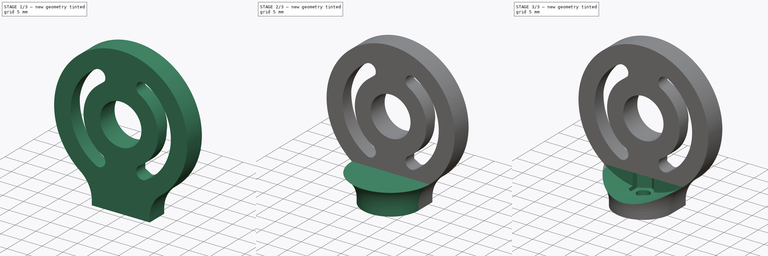
[diagram: build sequence overview — one tinted view per stage of 3, left to right]
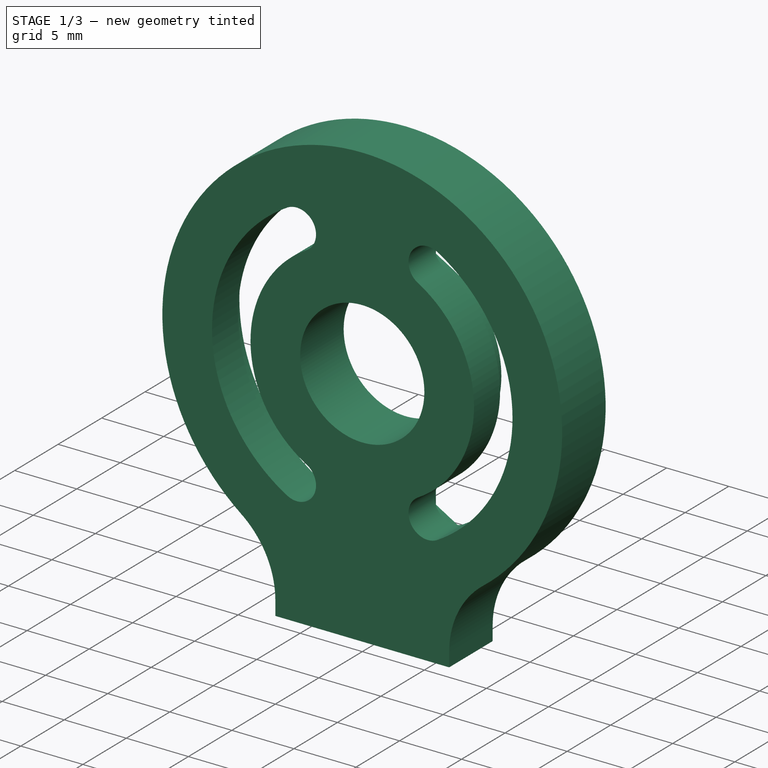
[diagram: stage 1 of 3 — iso view after this stage's code; geometry added in this stage tinted green]
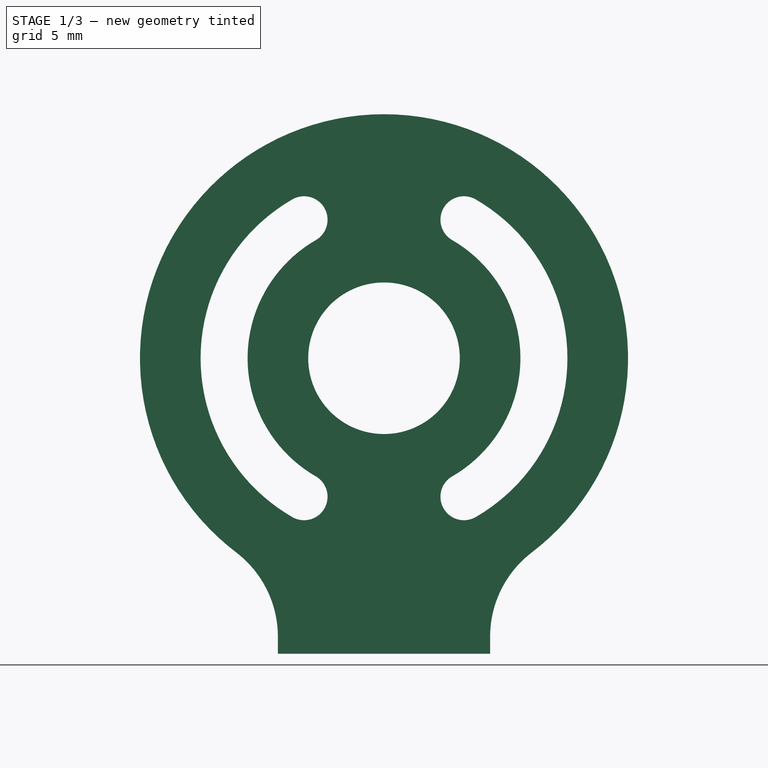
[diagram: stage 1 of 3 — front view after this stage's code; geometry added in this stage tinted green]
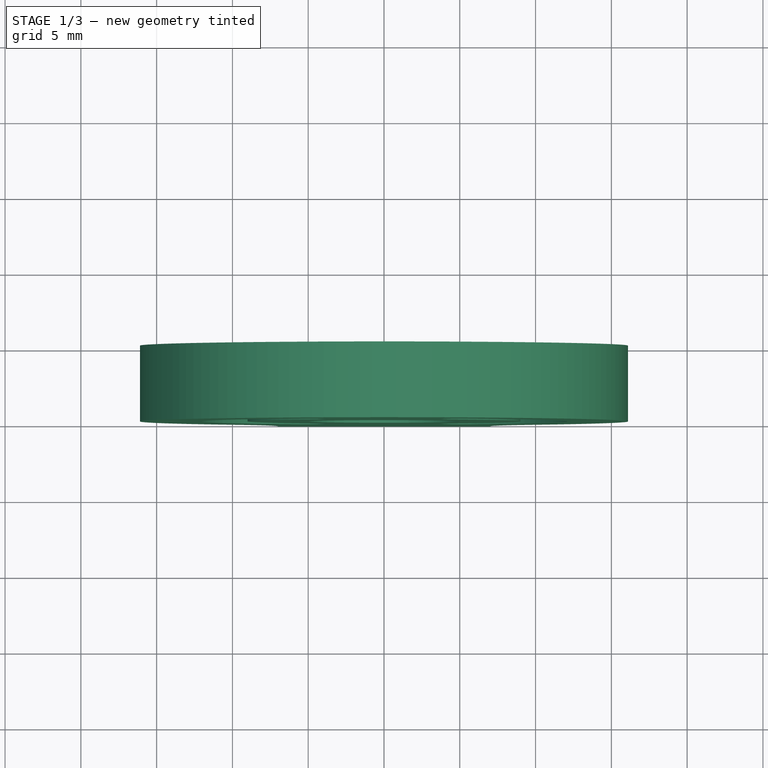
[diagram: stage 1 of 3 — top view after this stage's code; geometry added in this stage tinted green]
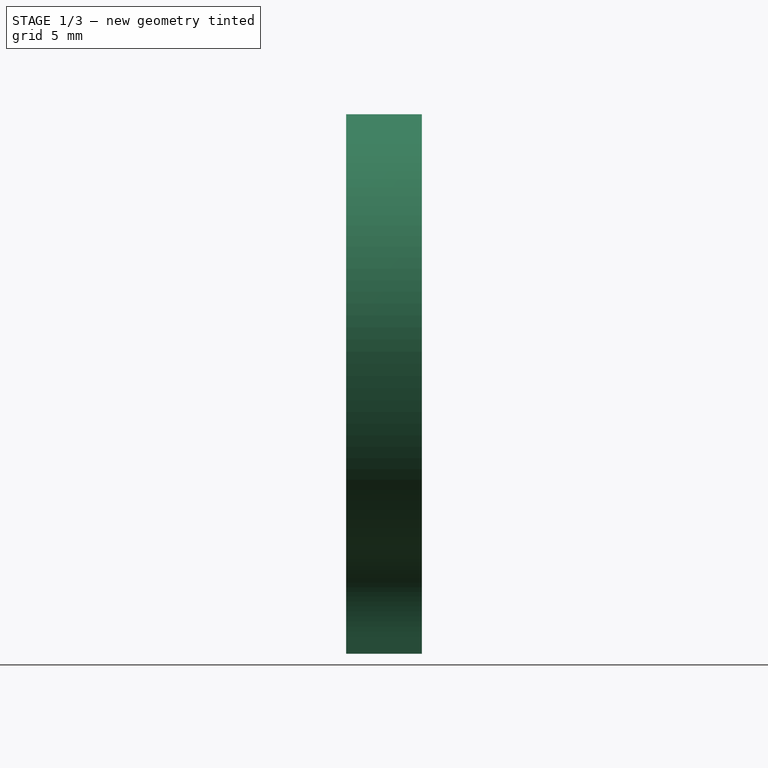
[diagram: stage 1 of 3 — right view after this stage's code; geometry added in this stage tinted green]
FCSTD DOCUMENT  (FreeCAD 0.16RUnknown)
Label: joint-i-top.005
License: All rights reserved
LicenseURL: http://en.wikipedia.org/wiki/All_rights_reserved
objects: Sketcher::SketchObject×7, PartDesign::Pocket×4, Part::Extrusion×1, Part::Fillet×1, Part::Revolution×1, Part::MultiFuse×1
note: 19 computed .brp shape members not serialized (recipe doc carries the construction recipe); baked Part::Feature solids carry a one-line shape summary decoded from their .brp

FEATURE [Sketcher::SketchObject] Sketch
  sketch-geometry (4):
    g0: Circle [constr] CenterX=0 CenterY=0 CenterZ=0 NormalX=0 NormalY=0 NormalZ=1 Radius=5
    g1: LineSegment [constr] StartX=5 StartY=0 StartZ=0 EndX=7 EndY=0 EndZ=0
    g2: ArcOfCircle CenterX=0 CenterY=0 CenterZ=0 NormalX=0 NormalY=0 NormalZ=1 Radius=7 StartAngle=2.34599 EndAngle=7.07879
    g3: LineSegment StartX=-4.89898 StartY=5 StartZ=0 EndX=4.89898 EndY=5 EndZ=0
  constraints (9):
    c: Radius(g0) = 5
    c: Horizontal(g1)
    c: PointOnObject(g1,g0)
    c: PointOnObject(g1,g-1)
    c: DistanceX(g1,g1) = 2
    c: PointOnObject(g1,g2)
    c: Horizontal(g3)
    c: Coincident(g2,g3)
    c: Coincident(g2,g3)
FEATURE [Sketcher::SketchObject] Sketch001
  Placement = pos=(0,0,0) rot=(1,0,0;1.5708rad)
  sketch-geometry (28):
    g0: Circle CenterX=0 CenterY=19.4986 CenterZ=0 NormalX=0 NormalY=0 NormalZ=1 Radius=5
    g1: ArcOfCircle CenterX=0 CenterY=19.4986 CenterZ=0 NormalX=0 NormalY=0 NormalZ=1 Radius=12.1 StartAngle=2.0944 EndAngle=4.18879
    g2: ArcOfCircle CenterX=0 CenterY=19.4986 CenterZ=0 NormalX=0 NormalY=0 NormalZ=1 Radius=9 StartAngle=2.0944 EndAngle=4.18879
    g3: ArcOfCircle CenterX=0 CenterY=19.4986 CenterZ=0 NormalX=0 NormalY=0 NormalZ=1 Radius=9 StartAngle=5.23599 EndAngle=7.33038
    g4: ArcOfCircle CenterX=0 CenterY=19.4986 CenterZ=0 NormalX=0 NormalY=0 NormalZ=1 Radius=12.1 StartAngle=5.23599 EndAngle=7.33038
    g5: ArcOfCircle [constr] CenterX=0 CenterY=19.4986 CenterZ=0 NormalX=0 NormalY=0 NormalZ=1 Radius=9 StartAngle=4.18879 EndAngle=5.23599
    g6: ArcOfCircle [constr] CenterX=0 CenterY=19.4986 CenterZ=0 NormalX=0 NormalY=0 NormalZ=1 Radius=12.1 StartAngle=4.18879 EndAngle=5.23599
    g7: ArcOfCircle [constr] CenterX=0 CenterY=19.4986 CenterZ=0 NormalX=0 NormalY=0 NormalZ=1 Radius=9 StartAngle=1.0472 EndAngle=2.0944
    g8: ArcOfCircle [constr] CenterX=0 CenterY=19.4986 CenterZ=0 NormalX=0 NormalY=0 NormalZ=1 Radius=12.1 StartAngle=1.0472 EndAngle=2.0944
    g9: LineSegment [constr] StartX=6.05 StartY=9.01971 StartZ=0 EndX=4.5 EndY=11.7044 EndZ=0
    g10: LineSegment [constr] StartX=4.5 StartY=11.7044 StartZ=0 EndX=0 EndY=19.4986 EndZ=0
    g11: LineSegment [constr] StartX=-4.5 StartY=27.2928 StartZ=0 EndX=-6.05 EndY=29.9775 EndZ=0
    g12: LineSegment [constr] StartX=-6.05 StartY=9.01971 StartZ=0 EndX=-4.5 EndY=11.7044 EndZ=0
    g13: LineSegment [constr] StartX=-4.5 StartY=11.7044 StartZ=0 EndX=0 EndY=19.4986 EndZ=0
    g14: LineSegment [constr] StartX=0 StartY=19.4986 StartZ=0 EndX=4.5 EndY=27.2928 EndZ=0
    g15: LineSegment [constr] StartX=4.5 StartY=27.2928 StartZ=0 EndX=6.05 EndY=29.9775 EndZ=0
    g16: LineSegment [constr] StartX=0 StartY=19.4986 StartZ=0 EndX=-2.5 EndY=23.8287 EndZ=0
    g17: LineSegment [constr] StartX=-2.5 StartY=23.8287 StartZ=0 EndX=-4.5 EndY=27.2928 EndZ=0
    g18: LineSegment [constr] StartX=-6.05 StartY=29.9775 StartZ=0 EndX=-8.05 EndY=33.4416 EndZ=0
    g19: ArcOfCircle CenterX=-5.275 CenterY=10.3621 CenterZ=0 NormalX=0 NormalY=0 NormalZ=1 Radius=1.55 StartAngle=4.18879 EndAngle=7.33038
    g20: ArcOfCircle CenterX=5.275 CenterY=10.3621 CenterZ=0 NormalX=0 NormalY=0 NormalZ=1 Radius=1.55 StartAngle=2.0944 EndAngle=5.23599
    g21: ArcOfCircle CenterX=5.275 CenterY=28.6352 CenterZ=0 NormalX=0 NormalY=0 NormalZ=1 Radius=1.55 StartAngle=1.0472 EndAngle=4.18879
    g22: ArcOfCircle CenterX=-5.275 CenterY=28.6352 CenterZ=0 NormalX=0 NormalY=0 NormalZ=1 Radius=1.55 StartAngle=5.23599 EndAngle=8.37758
    g23: LineSegment StartX=-7 StartY=0 StartZ=0 EndX=7 EndY=0 EndZ=0
    g24: ArcOfCircle CenterX=0 CenterY=19.4986 CenterZ=0 NormalX=0 NormalY=0 NormalZ=1 Radius=16.1 StartAngle=5.16219 EndAngle=10.5458
    g25: LineSegment StartX=-7 StartY=0 StartZ=0 EndX=-7 EndY=5 EndZ=0
    g26: LineSegment StartX=7 StartY=0 StartZ=0 EndX=7 EndY=5 EndZ=0
    g27: LineSegment [constr] StartX=-4.5 StartY=27.2928 StartZ=0 EndX=4.5 EndY=27.2928 EndZ=0
  constraints (77):
    c: PointOnObject(g5,g-2)
    c: Coincident(g0,g1)
    c: Coincident(g0,g2)
    c: Coincident(g0,g3)
    c: Coincident(g0,g4)
    c: Coincident(g0,g5)
    c: Coincident(g0,g6)
    c: Coincident(g0,g7)
    c: Coincident(g0,g8)
    c: Coincident(g2,g5)
    c: Coincident(g1,g6)
    c: Coincident(g3,g5)
    c: Coincident(g4,g6)
    c: Coincident(g2,g7)
    c: Coincident(g3,g7)
    c: Coincident(g1,g8)
    c: Coincident(g4,g8)
    c: Radius(g0) = 5
    c: Coincident(g9,g10)
    c: Coincident(g12,g13)
    c: Coincident(g13,g14)
    c: Coincident(g14,g15)
    c: Coincident(g0,g10)
    c: Coincident(g0,g13)
    c: Coincident(g1,g11)
    c: Coincident(g2,g12)
    c: Coincident(g3,g9)
    c: Coincident(g4,g9)
    c: Coincident(g3,g14)
    c: Coincident(g4,g15)
    c: Parallel(g12,g13)
    c: Parallel(g13,g14)
    c: Parallel(g14,g15)
    c: Distance(g11) = 3.1
    c: Angle(g13,g10) = 1.0472
    c: Coincident(g16,g17)
    c: Coincident(g2,g11)
    c: Coincident(g2,g17)
    c: Coincident(g0,g16)
    c: PointOnObject(g16,g0)
    c: Distance(g17) = 4
    c: Coincident(g1,g18)
    c: Parallel(g18,g11)
    c: Parallel(g11,g17)
    c: Parallel(g17,g16)
    c: Parallel(g16,g10)
    c: Parallel(g10,g9)
    c: Equal(g18,g17)
    c: Coincident(g2,g22)
    c: Coincident(g1,g22)
    c: PointOnObject(g22,g11)
    c: Coincident(g1,g19)
    c: Coincident(g2,g19)
    c: PointOnObject(g19,g12)
    c: Coincident(g4,g20)
    c: Coincident(g3,g20)
    c: PointOnObject(g20,g9)
    c: Coincident(g3,g21)
    c: Coincident(g4,g21)
    c: PointOnObject(g21,g15)
    c: Horizontal(g23)
    c: Coincident(g0,g24)
    c: PointOnObject(g18,g24)
    c: PointOnObject(g-1,g23)
    c: Vertical(g25)
    c: Vertical(g26)
    c: Equal(g26,g25)
    c: Coincident(g23,g26)
    c: Coincident(g23,g25)
    c: DistanceX(g23,g23) = 14
    c: Coincident(g24,g26)
    c: Coincident(g24,g25)
    c: DistanceY(g26,g26) = 5
    c: Coincident(g12,g1)
    c: Horizontal(g27)
    c: Coincident(g2,g27)
    c: Coincident(g3,g27)
FEATURE [Part::Extrusion] Extrude001
  Base = -> Sketch001
  Dir = (0,5,0)
  Solid = true
FEATURE [Part::Fillet] Fillet
  Base = -> Extrude001
  Edges = 2 edges r=7: [Edge5,Edge8]
FEATURE [Sketcher::SketchObject] Sketch002
  ExternalGeometry = -> [Fillet]
  Placement = pos=(0,5,0) rot=(0,0.707107,0.707107;3.14159rad)
  Support = -> Fillet [Face5]
  sketch-geometry (48):
    g0: ArcOfCircle CenterX=0 CenterY=19.4986 CenterZ=0 NormalX=0 NormalY=0 NormalZ=1 Radius=7.7 StartAngle=2.0944 EndAngle=4.18879
    g1: ArcOfCircle CenterX=0 CenterY=19.4986 CenterZ=0 NormalX=0 NormalY=0 NormalZ=1 Radius=13.4 StartAngle=2.0944 EndAngle=4.18879
    g2: ArcOfCircle CenterX=0 CenterY=19.4986 CenterZ=0 NormalX=0 NormalY=0 NormalZ=1 Radius=7.7 StartAngle=5.23599 EndAngle=7.33038
    g3: ArcOfCircle CenterX=0 CenterY=19.4986 CenterZ=0 NormalX=0 NormalY=0 NormalZ=1 Radius=13.4 StartAngle=5.23599 EndAngle=7.33038
    g4: ArcOfCircle [constr] CenterX=0 CenterY=19.4986 CenterZ=0 NormalX=0 NormalY=0 NormalZ=1 Radius=7.7 StartAngle=1.0472 EndAngle=2.0944
    g5: ArcOfCircle [constr] CenterX=0 CenterY=19.4986 CenterZ=0 NormalX=0 NormalY=0 NormalZ=1 Radius=13.4 StartAngle=1.0472 EndAngle=2.0944
    g6: ArcOfCircle [constr] CenterX=0 CenterY=19.4986 CenterZ=0 NormalX=0 NormalY=0 NormalZ=1 Radius=7.7 StartAngle=4.18879 EndAngle=5.23599
    g7: ArcOfCircle [constr] CenterX=0 CenterY=19.4986 CenterZ=0 NormalX=0 NormalY=0 NormalZ=1 Radius=13.4 StartAngle=4.18879 EndAngle=5.23599
    g8: LineSegment [constr] StartX=-6.7 StartY=7.89388 StartZ=0 EndX=-6.05 EndY=9.01971 EndZ=0
    g9: LineSegment [constr] StartX=-6.05 StartY=9.01971 StartZ=0 EndX=-4.5 EndY=11.7044 EndZ=0
    g10: LineSegment [constr] StartX=-4.5 StartY=11.7044 StartZ=0 EndX=-3.85 EndY=12.8302 EndZ=0
    g11: LineSegment [constr] StartX=-3.85 StartY=12.8302 StartZ=0 EndX=0 EndY=19.4986 EndZ=0
    g12: LineSegment [constr] StartX=0 StartY=19.4986 StartZ=0 EndX=3.85 EndY=26.167 EndZ=0
    g13: LineSegment [constr] StartX=3.85 StartY=26.167 StartZ=0 EndX=6.7 EndY=31.1034 EndZ=0
    g14: LineSegment [constr] StartX=-6.7 StartY=31.1034 StartZ=0 EndX=-6.05 EndY=29.9775 EndZ=0
    g15: LineSegment [constr] StartX=-6.05 StartY=29.9775 StartZ=0 EndX=-4.5 EndY=27.2928 EndZ=0
    g16: LineSegment [constr] StartX=-4.5 StartY=27.2928 StartZ=0 EndX=-3.85 EndY=26.167 EndZ=0
    g17: LineSegment [constr] StartX=-3.85 StartY=26.167 StartZ=0 EndX=0 EndY=19.4986 EndZ=0
    g18: LineSegment [constr] StartX=0 StartY=19.4986 StartZ=0 EndX=3.85 EndY=12.8302 EndZ=0
    g19: LineSegment [constr] StartX=3.85 StartY=12.8302 StartZ=0 EndX=6.7 EndY=7.89388 EndZ=0
    g20: ArcOfCircle [constr] CenterX=-5.275 CenterY=10.3621 CenterZ=0 NormalX=0 NormalY=0 NormalZ=1 Radius=2.85 StartAngle=4.18879 EndAngle=7.33038
    g21: ArcOfCircle [constr] CenterX=5.275 CenterY=10.3621 CenterZ=0 NormalX=0 NormalY=0 NormalZ=1 Radius=2.85 StartAngle=2.0944 EndAngle=5.23599
    g22: ArcOfCircle [constr] CenterX=-5.275 CenterY=28.6352 CenterZ=0 NormalX=0 NormalY=0 NormalZ=1 Radius=2.85 StartAngle=5.23599 EndAngle=8.37758
    g23: ArcOfCircle [constr] CenterX=5.275 CenterY=28.6352 CenterZ=0 NormalX=0 NormalY=0 NormalZ=1 Radius=2.85 StartAngle=1.0472 EndAngle=4.18879
    g24: LineSegment StartX=-6.7 StartY=31.1034 StartZ=0 EndX=-5.275 EndY=31.9261 EndZ=0
    g25: LineSegment StartX=-5.275 StartY=31.9261 StartZ=0 EndX=-3.85 EndY=31.1034 EndZ=0
    g26: LineSegment StartX=-3.85 StartY=31.1034 StartZ=0 EndX=-2.425 EndY=30.2806 EndZ=0
    g27: LineSegment StartX=-2.425 StartY=30.2806 StartZ=0 EndX=-2.425 EndY=28.6352 EndZ=0
    g28: LineSegment StartX=-2.425 StartY=28.6352 StartZ=0 EndX=-2.425 EndY=26.9897 EndZ=0
    g29: LineSegment StartX=-2.425 StartY=26.9897 StartZ=0 EndX=-3.85 EndY=26.167 EndZ=0
    g30: LineSegment StartX=3.85 StartY=26.167 StartZ=0 EndX=2.425 EndY=26.9897 EndZ=0
    g31: LineSegment StartX=2.425 StartY=26.9897 StartZ=0 EndX=2.425 EndY=28.6352 EndZ=0
    g32: LineSegment StartX=2.425 StartY=28.6352 StartZ=0 EndX=2.425 EndY=30.2806 EndZ=0
    g33: LineSegment StartX=2.425 StartY=30.2806 StartZ=0 EndX=3.85 EndY=31.1034 EndZ=0
    g34: LineSegment StartX=3.85 StartY=31.1034 StartZ=0 EndX=5.275 EndY=31.9261 EndZ=0
    g35: LineSegment StartX=5.275 StartY=31.9261 StartZ=0 EndX=6.7 EndY=31.1034 EndZ=0
    g36: LineSegment StartX=-3.85 StartY=12.8302 StartZ=0 EndX=-2.425 EndY=12.0075 EndZ=0
    g37: LineSegment StartX=-2.425 StartY=12.0075 StartZ=0 EndX=-2.425 EndY=10.3621 EndZ=0
    g38: LineSegment StartX=-2.425 StartY=10.3621 StartZ=0 EndX=-2.425 EndY=8.7166 EndZ=0
    g39: LineSegment StartX=-2.425 StartY=8.7166 StartZ=0 EndX=-3.85 EndY=7.89388 EndZ=0
    g40: LineSegment StartX=-3.85 StartY=7.89388 StartZ=0 EndX=-5.275 EndY=7.07116 EndZ=0
    g41: LineSegment StartX=-5.275 StartY=7.07116 StartZ=0 EndX=-6.7 EndY=7.89388 EndZ=0
    g42: LineSegment StartX=3.85 StartY=12.8302 StartZ=0 EndX=2.425 EndY=12.0075 EndZ=0
    g43: LineSegment StartX=2.425 StartY=12.0075 StartZ=0 EndX=2.425 EndY=10.3621 EndZ=0
    g44: LineSegment StartX=2.425 StartY=10.3621 StartZ=0 EndX=2.425 EndY=8.7166 EndZ=0
    g45: LineSegment StartX=2.425 StartY=8.7166 StartZ=0 EndX=3.85 EndY=7.89388 EndZ=0
    g46: LineSegment StartX=3.85 StartY=7.89388 StartZ=0 EndX=5.275 EndY=7.07116 EndZ=0
    g47: LineSegment StartX=5.275 StartY=7.07116 StartZ=0 EndX=6.7 EndY=7.89388 EndZ=0
  constraints (132):
    c: Coincident(g0,g1)
    c: Coincident(g0,g2)
    c: Coincident(g0,g3)
    c: Coincident(g0,g4)
    c: Coincident(g0,g5)
    c: Coincident(g0,g6)
    c: Coincident(g0,g7)
    c: Coincident(g0,g-4)
    c: Coincident(g0,g4)
    c: Coincident(g2,g4)
    c: Coincident(g1,g5)
    c: Coincident(g3,g5)
    c: Coincident(g2,g6)
    c: Coincident(g0,g6)
    c: Coincident(g1,g7)
    c: Coincident(g3,g7)
    c: Coincident(g8,g9)
    c: Coincident(g9,g10)
    c: Coincident(g10,g11)
    c: Coincident(g11,g12)
    c: Coincident(g12,g13)
    c: Coincident(g1,g8)
    c: Coincident(g8,g-3)
    c: Coincident(g9,g-4)
    c: Coincident(g0,g10)
    c: Coincident(g0,g11)
    c: Coincident(g2,g12)
    c: Coincident(g3,g13)
    c: Parallel(g8,g9)
    c: Parallel(g9,g10)
    c: Parallel(g10,g11)
    c: Parallel(g11,g12)
    c: Parallel(g12,g13)
    c: Equal(g8,g10)
    c: Coincident(g14,g15)
    c: Coincident(g15,g16)
    c: Coincident(g16,g17)
    c: Coincident(g17,g18)
    c: Coincident(g18,g19)
    c: Coincident(g3,g19)
    c: Coincident(g2,g18)
    c: Coincident(g0,g17)
    c: Coincident(g0,g16)
    c: Coincident(g15,g-4)
    c: Coincident(g14,g-3)
    c: Coincident(g1,g14)
    c: Parallel(g14,g15)
    c: Parallel(g15,g16)
    c: Parallel(g16,g17)
    c: Parallel(g17,g18)
    c: Parallel(g18,g19)
    c: Distance(g8) = 1.3
    c: Coincident(g3,g23)
    c: Coincident(g2,g23)
    c: Coincident(g0,g22)
    c: Coincident(g1,g22)
    c: PointOnObject(g22,g15)
    c: PointOnObject(g23,g13)
    c: Coincident(g2,g21)
    c: Coincident(g3,g21)
    c: PointOnObject(g21,g19)
    c: Coincident(g1,g20)
    c: Coincident(g0,g20)
    c: PointOnObject(g20,g9)
    c: Coincident(g24,g25)
    c: Coincident(g25,g26)
    c: Coincident(g26,g27)
    c: Coincident(g27,g28)
    c: Coincident(g28,g29)
    c: Coincident(g30,g31)
    c: Coincident(g31,g32)
    c: Coincident(g32,g33)
    c: Coincident(g33,g34)
    c: Coincident(g34,g35)
    c: Coincident(g36,g37)
    c: Coincident(g37,g38)
    c: Coincident(g38,g39)
    c: Coincident(g39,g40)
    c: Coincident(g40,g41)
    c: Coincident(g42,g43)
    c: Coincident(g43,g44)
    c: Coincident(g44,g45)
    c: Coincident(g45,g46)
    c: Coincident(g46,g47)
    c: Equal(g29,g28)
    c: Equal(g28,g27)
    c: Equal(g27,g26)
    c: Equal(g26,g25)
    c: Equal(g25,g24)
    c: Equal(g30,g31)
    c: Equal(g31,g32)
    c: Equal(g32,g33)
    c: Equal(g33,g34)
    c: Equal(g34,g35)
    c: Equal(g36,g37)
    c: Equal(g37,g38)
    c: Equal(g38,g39)
    c: Equal(g39,g40)
    c: Equal(g40,g41)
    c: Equal(g42,g43)
    c: Equal(g43,g44)
    c: Equal(g44,g45)
    c: Equal(g45,g46)
    c: Equal(g46,g47)
    c: Parallel(g46,g45)
    c: Parallel(g44,g43)
    c: Parallel(g37,g38)
    c: Parallel(g39,g40)
    c: Parallel(g31,g32)
    c: Parallel(g33,g34)
    c: Parallel(g28,g27)
    c: Parallel(g26,g25)
    c: Coincident(g1,g24)
    c: Coincident(g0,g29)
    c: Coincident(g2,g30)
    c: Coincident(g3,g35)
    c: PointOnObject(g27,g22)
    c: PointOnObject(g25,g22)
    c: PointOnObject(g31,g23)
    c: PointOnObject(g33,g23)
    c: Coincident(g0,g36)
    c: Coincident(g1,g41)
    c: PointOnObject(g39,g20)
    c: PointOnObject(g37,g20)
    c: Coincident(g2,g42)
    c: Coincident(g3,g47)
    c: PointOnObject(g45,g21)
    c: PointOnObject(g43,g21)
    c: Tangent(g1,g24)
    c: Tangent(g36,g0)
    c: Tangent(g42,g2)
    c: Tangent(g35,g3)
FEATURE [PartDesign::Pocket] Pocket
  Length = 2
  Sketch = -> Sketch002
  Type = 0
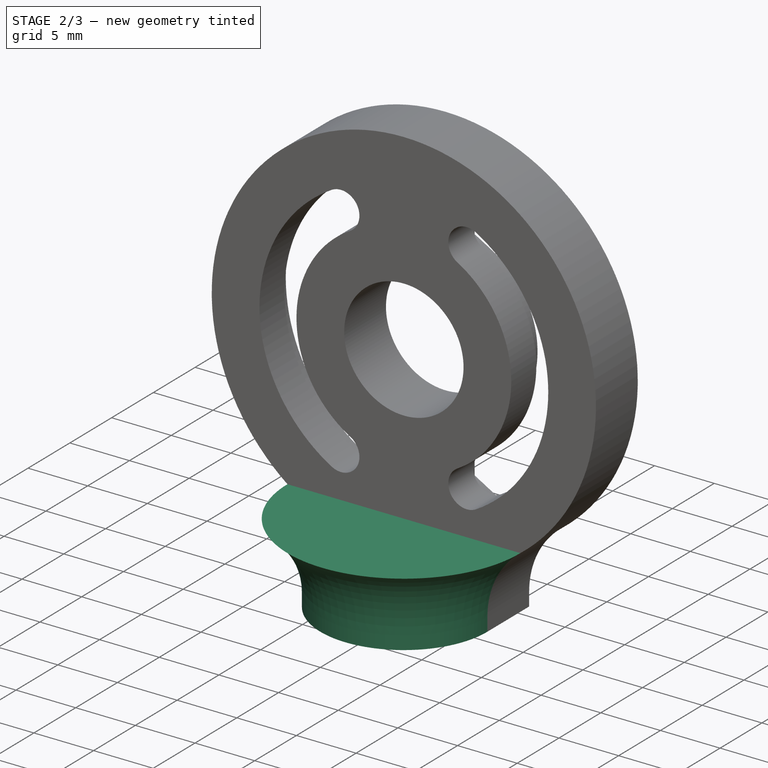
[diagram: stage 2 of 3 — iso view after this stage's code; geometry added in this stage tinted green]
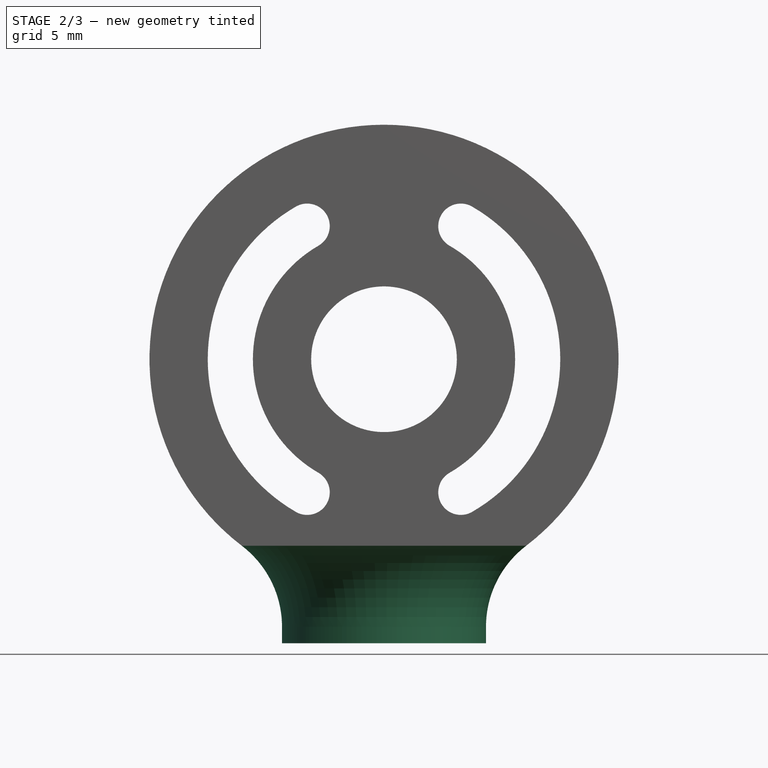
[diagram: stage 2 of 3 — front view after this stage's code; geometry added in this stage tinted green]
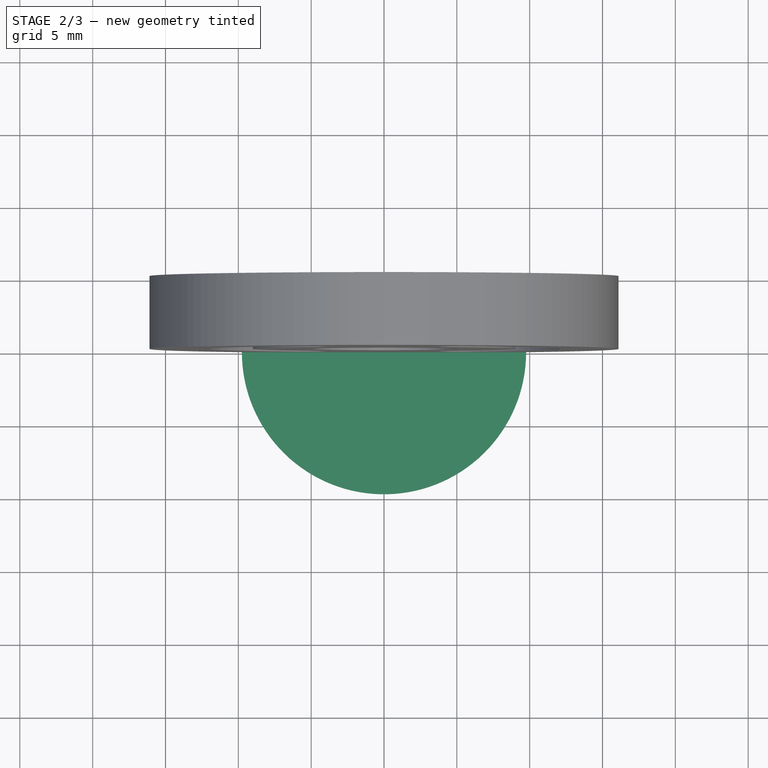
[diagram: stage 2 of 3 — top view after this stage's code; geometry added in this stage tinted green]
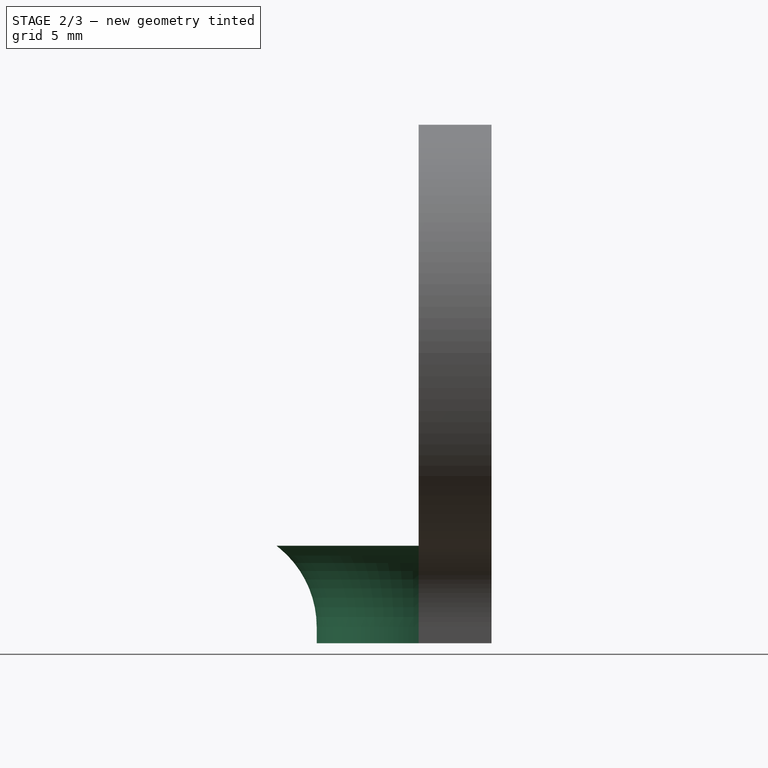
[diagram: stage 2 of 3 — right view after this stage's code; geometry added in this stage tinted green]
FEATURE [Sketcher::SketchObject] Sketch003
  ExternalGeometry = -> [Pocket]
  Placement = pos=(0,0,0) rot=(1,0,0;1.5708rad)
  Support = -> Pocket [Face2]
  sketch-geometry (5):
    g0: ArcOfCircle CenterX=-14 CenterY=1.12445 CenterZ=0 NormalX=0 NormalY=0 NormalZ=1 Radius=7 StartAngle=0 EndAngle=0.919698
    g1: LineSegment StartX=-7 StartY=1.12445 StartZ=0 EndX=-7 EndY=0 EndZ=0
    g2: LineSegment StartX=-7 StartY=0 StartZ=0 EndX=0 EndY=0 EndZ=0
    g3: LineSegment StartX=0 StartY=0 StartZ=0 EndX=0 EndY=6.69238 EndZ=0
    g4: LineSegment StartX=0 StartY=6.69238 StartZ=0 EndX=-9.75758 EndY=6.69238 EndZ=0
  constraints (15):
    c: Vertical(g1)
    c: Coincident(g1,g2)
    c: Horizontal(g2)
    c: Coincident(g2,g3)
    c: Vertical(g3)
    c: Coincident(g3,g4)
    c: Horizontal(g4)
    c: Coincident(g0,g4)
    c: Coincident(g0,g-4)
    c: Coincident(g0,g1)
    c: Coincident(g0,g-4)
    c: Coincident(g0,g-3)
    c: Coincident(g1,g-3)
    c: Coincident(g2,g-1)
    c: Equal(g0,g-4)
FEATURE [Part::Revolution] Revolve
  Angle = 180
  Axis = (0,0,1)
  Base = (0,0,0)
  Solid = true
  Source = -> Sketch003
FEATURE [Part::MultiFuse] Fusion
  Shapes = -> [Revolve,Pocket]
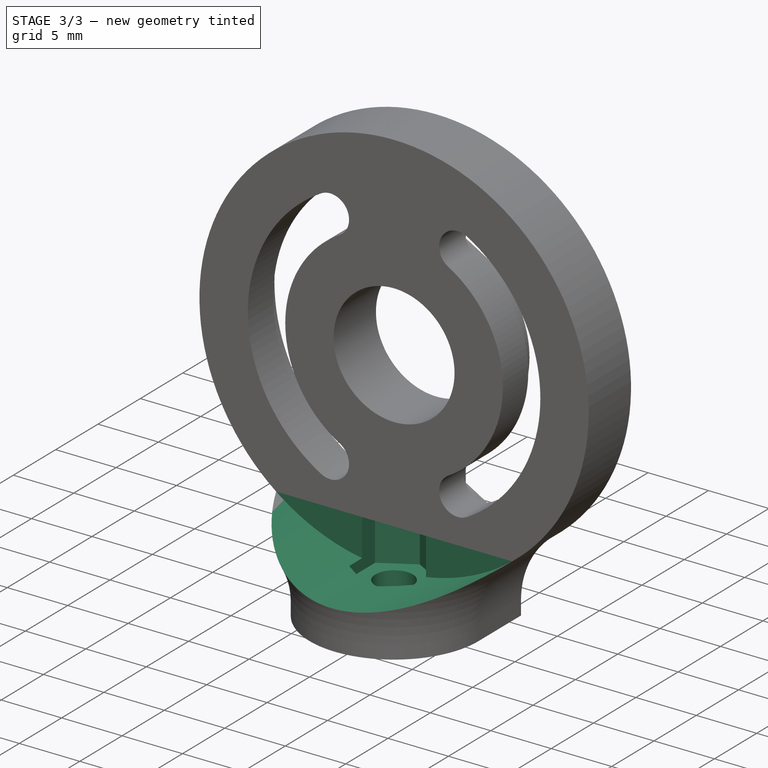
[diagram: stage 3 of 3 — iso view after this stage's code; geometry added in this stage tinted green]
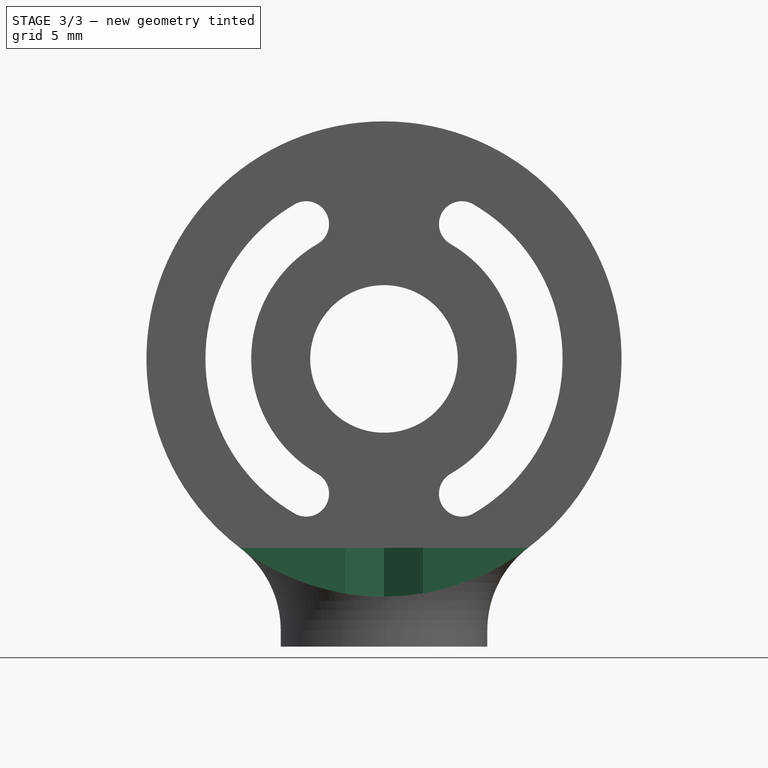
[diagram: stage 3 of 3 — front view after this stage's code; geometry added in this stage tinted green]
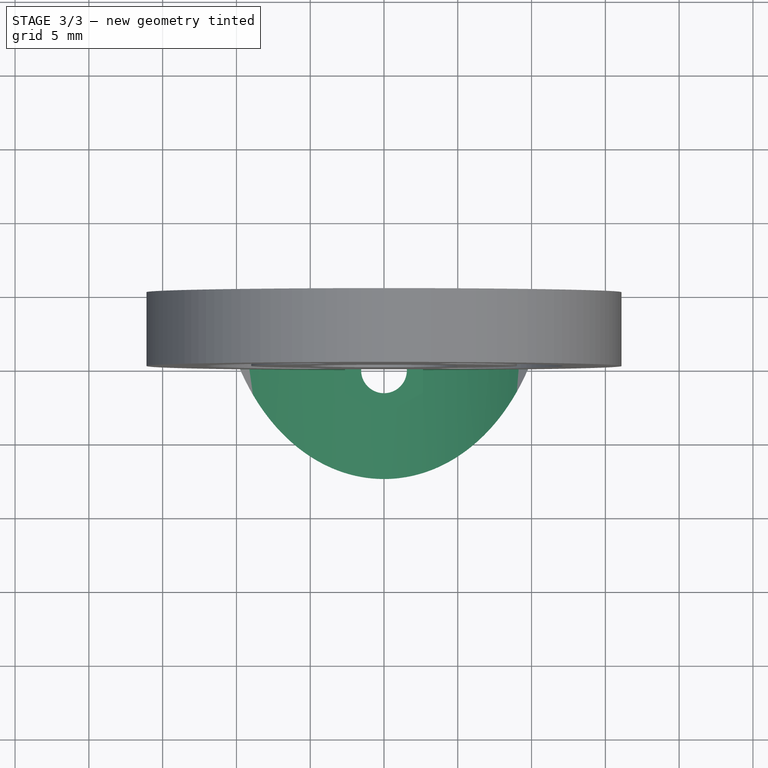
[diagram: stage 3 of 3 — top view after this stage's code; geometry added in this stage tinted green]
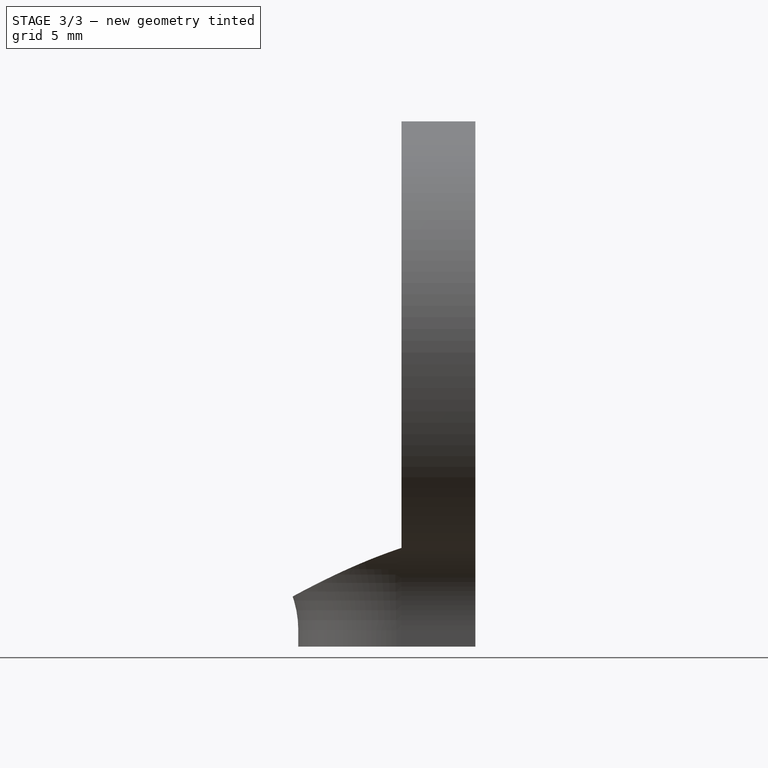
[diagram: stage 3 of 3 — right view after this stage's code; geometry added in this stage tinted green]
FEATURE [Sketcher::SketchObject] Sketch004
  Placement = pos=(0,0,6.69238) rot=(0,0,1;0rad)
  Support = -> Fusion [Face43]
  sketch-geometry (7):
    g0: LineSegment StartX=2.64138 StartY=-1.525 StartZ=0 EndX=2.64138 EndY=1.525 EndZ=0
    g1: LineSegment StartX=2.64138 StartY=1.525 StartZ=0 EndX=0 EndY=3.05 EndZ=0
    g2: LineSegment StartX=0 StartY=3.05 StartZ=0 EndX=-2.64138 EndY=1.525 EndZ=0
    g3: LineSegment StartX=-2.64138 StartY=1.525 StartZ=0 EndX=-2.64138 EndY=-1.525 EndZ=0
    g4: LineSegment StartX=-2.64138 StartY=-1.525 StartZ=0 EndX=0 EndY=-3.05 EndZ=0
    g5: LineSegment StartX=0 StartY=-3.05 StartZ=0 EndX=2.64138 EndY=-1.525 EndZ=0
    g6: Circle [constr] CenterX=0 CenterY=0 CenterZ=0 NormalX=0 NormalY=0 NormalZ=1 Radius=3.05
  constraints (16):
    c: Coincident(g0,g1)
    c: Coincident(g1,g2)
    c: Coincident(g2,g3)
    c: Coincident(g3,g4)
    c: Coincident(g4,g5)
    c: Coincident(g5,g0)
    c: Equal(g0, g1-g5) x5
    c: PointOnObject(g0,g6)
    c: PointOnObject(g1,g6)
    c: PointOnObject(g2,g6)
    c: PointOnObject(g3,g6)
    c: PointOnObject(g4,g6)
    c: PointOnObject(g5,g6)
    c: Coincident(g6,g-1)
    c: Vertical(g0)
    c: DistanceY(g4,g1) = 6.1
FEATURE [PartDesign::Pocket] Pocket001
  Length = 4
  Sketch = -> Sketch004
  Type = 0
FEATURE [Sketcher::SketchObject] Sketch005
  Placement = pos=(0,0,2.69238) rot=(0,0,1;0rad)
  Support = -> Pocket001 [Face59]
  sketch-geometry (1):
    g0: Circle CenterX=0 CenterY=0 CenterZ=0 NormalX=0 NormalY=0 NormalZ=1 Radius=1.55
  constraints (2):
    c: Coincident(g0,g-1)
    c: Radius(g0) = 1.55
FEATURE [PartDesign::Pocket] Pocket002
  Length = 5
  Sketch = -> Sketch005
  Type = 1
FEATURE [Sketcher::SketchObject] Sketch006
  ExternalGeometry = -> [Pocket002]
  Placement = pos=(0,0,0) rot=(1,0,0;1.5708rad)
  Support = -> Pocket002 [Face41]
  sketch-geometry (2):
    g0: LineSegment StartX=-9.75758 StartY=6.69238 StartZ=0 EndX=9.75758 EndY=6.69238 EndZ=0
    g1: ArcOfCircle CenterX=0 CenterY=19.4986 CenterZ=0 NormalX=0 NormalY=0 NormalZ=1 Radius=16.1 StartAngle=4.06129 EndAngle=5.36349
  constraints (6):
    c: Horizontal(g0)
    c: Coincident(g0,g1)
    c: Coincident(g0,g-3)
    c: Coincident(g0,g1)
    c: Coincident(g0,g-3)
    c: Coincident(g1,g-3)
FEATURE [PartDesign::Pocket] Pocket003
  Length = 5
  Reversed = true
  Sketch = -> Sketch006
  Type = 1
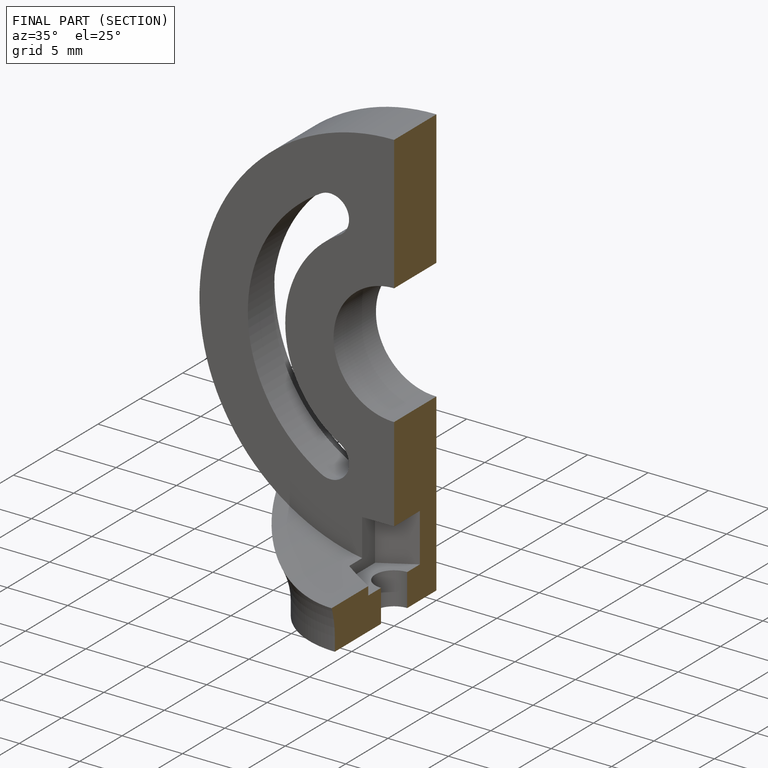
[diagram: finished part — half-section view (interior)]
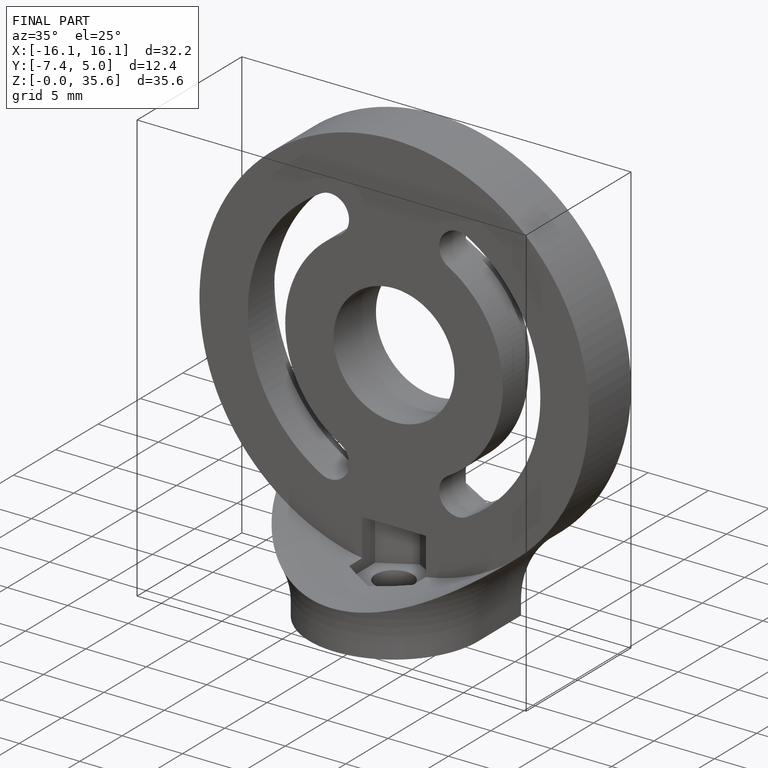
[diagram: finished part — iso view with bounding-box wireframe]
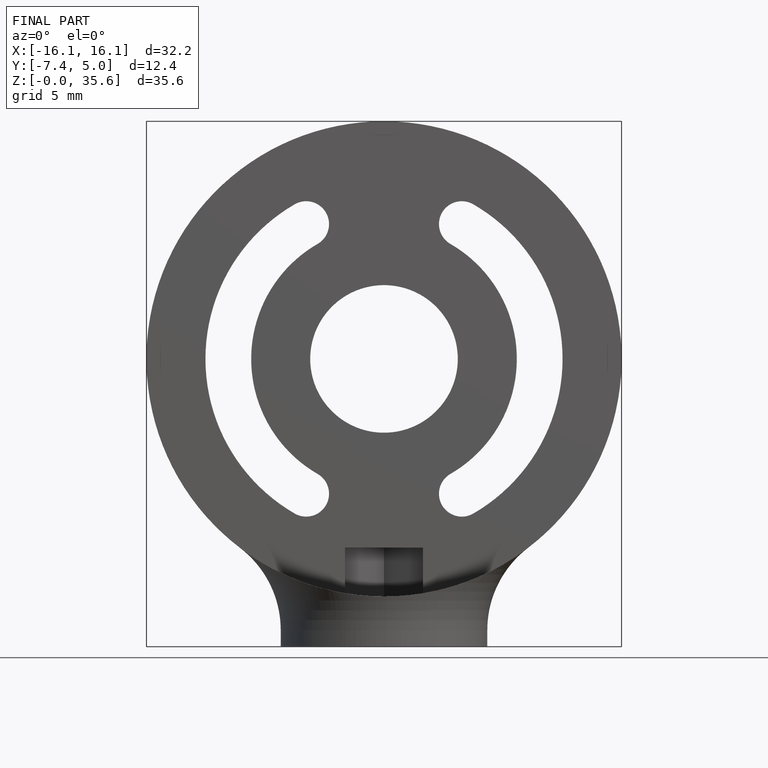
[diagram: finished part — front view with bounding-box wireframe]
